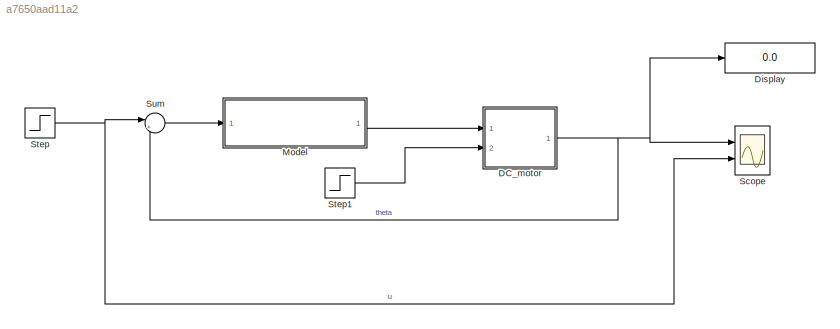
MODEL slx_a7650aad11a2
KIND model
CONFIG AbsTol = auto
CONFIG EnableMultiTasking = off
CONFIG FixedStep = auto
CONFIG MaxStep = auto
CONFIG MinStep = auto
CONFIG RelTol = 1e-3
CONFIG SampleTimeConstraint = Unconstrained
CONFIG SolverName = VariableStepAuto
CONFIG StartTime = 0.0
CONFIG StopTime = 10.0
BLOCK [ModelReference] DC_motor
  ModelNameDialog = DC_motor
  ModelReferenceVersion = 1.5
  Ports = [2, 1]
BLOCK [Display] Display
  Decimation = 1
  Ports = [1]
BLOCK [ModelReference] Model
  ModelNameDialog = PID_controller.slx
  ModelReferenceVersion = 1.7
  Ports = [1, 1]
BLOCK [Scope] Scope
  Floating = off
  NumInputPorts = 2
  Ports = [2]
  ScopeSpecificationString = Simulink.scopes.TimeScopeBlockCfg('CurrentConfiguration', extmgr.ConfigurationSet(extmgr.Configuration('Core','General UI',true),extmgr.Configuration('Core','Source UI',true),extmgr.Configuration('Sources','WiredSimulink',true),extmgr.Configuration('Visuals','Time Domain',true,'SerializedDisplays',{struct('MinYLimReal','0.49886','MaxYLimReal','1.05442','YLabelReal','','MinYLimMag','0.49886','MaxYL...<+1448ch>
BLOCK [Step] Step
  SampleTime = 0
BLOCK [Step] Step1
  After = -0.01
  SampleTime = 0
BLOCK [Sum] Sum
  Inputs = |+-
  Ports = [2, 1]
NET DC_motor:1 -> Display:1, Scope:1, Sum:2
LINE Model:1 -> DC_motor:1
LINE Step1:1 -> DC_motor:2
NET Step:1 -> Scope:2, Sum:1
LINE Sum:1 -> Model:1
note: NET lines group one-source signal fan-out (src -> all destinations, sorted); 1:1 wires keep LINE
